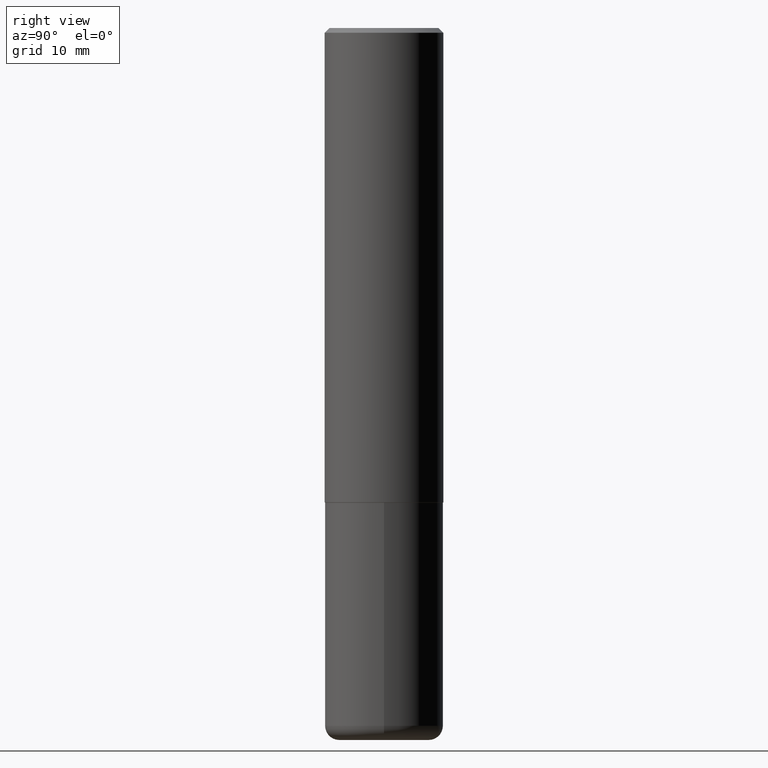
[diagram: clean part render]
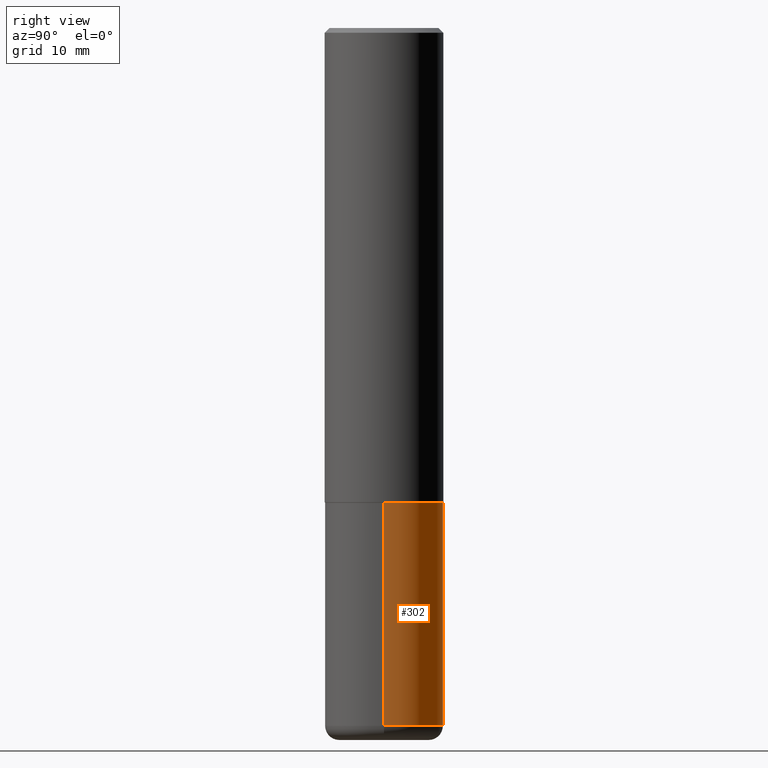
[diagram: same view with one face highlighted and labeled with its STEP entity id]
A machine part, right view. The second image highlights one B-rep face of the part: STEP entity #302.
In plain terms, the highlighted cylindrical surface (partial cylindrical patch) has radius 6.35 mm, axis along (-0, 0, 1).
Its self-contained STEP definition (entity closure, byte-faithful):
#7 = LINE ( 'NONE', #365, #414 ) ;
#8 = LINE ( 'NONE', #391, #217 ) ;
#13 = EDGE_CURVE ( 'NONE', #190, #185, #254, .T. ) ;
#17 = CARTESIAN_POINT ( 'NONE',  ( 0.2500000000000000000, -8.728703347107858632E-15, -2.000000000000000444 ) ) ;
#25 = CARTESIAN_POINT ( 'NONE',  ( 7.189678290184302760E-29, -1.026495513619885119E-14, -2.940000000000000835 ) ) ;
#43 = AXIS2_PLACEMENT_3D ( 'NONE', #25, #184, #58 ) ;
#49 = EDGE_CURVE ( 'NONE', #377, #185, #8, .T. ) ;
#51 = CARTESIAN_POINT ( 'NONE',  ( 0.000000000000000000, 0.000000000000000000, 0.000000000000000000 ) ) ;
#58 = DIRECTION ( 'NONE',  ( 1.000000000000000000, -6.982962677686269077E-15, 0.000000000000000000 ) ) ;
#64 = EDGE_CURVE ( 'NONE', #96, #190, #7, .T. ) ;
#65 = ORIENTED_EDGE ( 'NONE', *, *, #13, .F. ) ;
#96 = VERTEX_POINT ( 'NONE', #105 ) ;
#105 = CARTESIAN_POINT ( 'NONE',  ( 0.2500000000000000000, -1.201069580562041945E-14, -2.940000000000000835 ) ) ;
#127 = ORIENTED_EDGE ( 'NONE', *, *, #64, .F. ) ;
#128 = CIRCLE ( 'NONE', #43, 0.2500000000000000555 ) ;
#174 = CARTESIAN_POINT ( 'NONE',  ( -0.2500000000000000000, -6.847602067542320320E-15, -2.000000000000000444 ) ) ;
#177 = DIRECTION ( 'NONE',  ( 1.000000000000000000, -6.982962677686266711E-15, 4.876176775795935793E-29 ) ) ;
#178 = EDGE_LOOP ( 'NONE', ( #413, #250, #65, #127 ) ) ;
#180 = DIRECTION ( 'NONE',  ( -2.445468806185136597E-29, 3.491481338843145583E-15, 1.000000000000000000 ) ) ;
#184 = DIRECTION ( 'NONE',  ( -2.445468806185136597E-29, 3.491481338843145583E-15, 1.000000000000000000 ) ) ;
#185 = VERTEX_POINT ( 'NONE', #174 ) ;
#190 = VERTEX_POINT ( 'NONE', #17 ) ;
#201 = DIRECTION ( 'NONE',  ( -2.445468806185136877E-29, 3.491481338843145188E-15, 1.000000000000000000 ) ) ;
#210 = FACE_OUTER_BOUND ( 'NONE', #178, .T. ) ;
#217 = VECTOR ( 'NONE', #201, 39.37007874015748143 ) ;
#232 = AXIS2_PLACEMENT_3D ( 'NONE', #233, #259, #301 ) ;
#233 = CARTESIAN_POINT ( 'NONE',  ( 4.890937612370273754E-29, -6.982962677686291954E-15, -2.000000000000000444 ) ) ;
#237 = CYLINDRICAL_SURFACE ( 'NONE', #299, 0.2500000000000000000 ) ;
#250 = ORIENTED_EDGE ( 'NONE', *, *, #49, .T. ) ;
#254 = CIRCLE ( 'NONE', #232, 0.2500000000000000000 ) ;
#259 = DIRECTION ( 'NONE',  ( -2.445468806185136597E-29, 3.491481338843145583E-15, 1.000000000000000000 ) ) ;
#294 = DIRECTION ( 'NONE',  ( -2.445468806185136877E-29, 3.491481338843145188E-15, 1.000000000000000000 ) ) ;
#299 = AXIS2_PLACEMENT_3D ( 'NONE', #51, #180, #177 ) ;
#301 = DIRECTION ( 'NONE',  ( 1.000000000000000000, -6.982962677686266711E-15, 0.000000000000000000 ) ) ;
#302 = ADVANCED_FACE ( 'NONE', ( #210 ), #237, .T. ) ;
#315 = CARTESIAN_POINT ( 'NONE',  ( -0.2500000000000000000, -8.488598296798600727E-15, -2.940000000000000835 ) ) ;
#365 = CARTESIAN_POINT ( 'NONE',  ( 0.2500000000000000000, -1.745740669421566678E-15, 1.219044193948983948E-29 ) ) ;
#374 = EDGE_CURVE ( 'NONE', #96, #377, #128, .T. ) ;
#377 = VERTEX_POINT ( 'NONE', #315 ) ;
#391 = CARTESIAN_POINT ( 'NONE',  ( -0.2500000000000000000, 1.776356839400250465E-15, -1.229733772563726445E-29 ) ) ;
#413 = ORIENTED_EDGE ( 'NONE', *, *, #374, .T. ) ;
#414 = VECTOR ( 'NONE', #294, 39.37007874015748143 ) ;